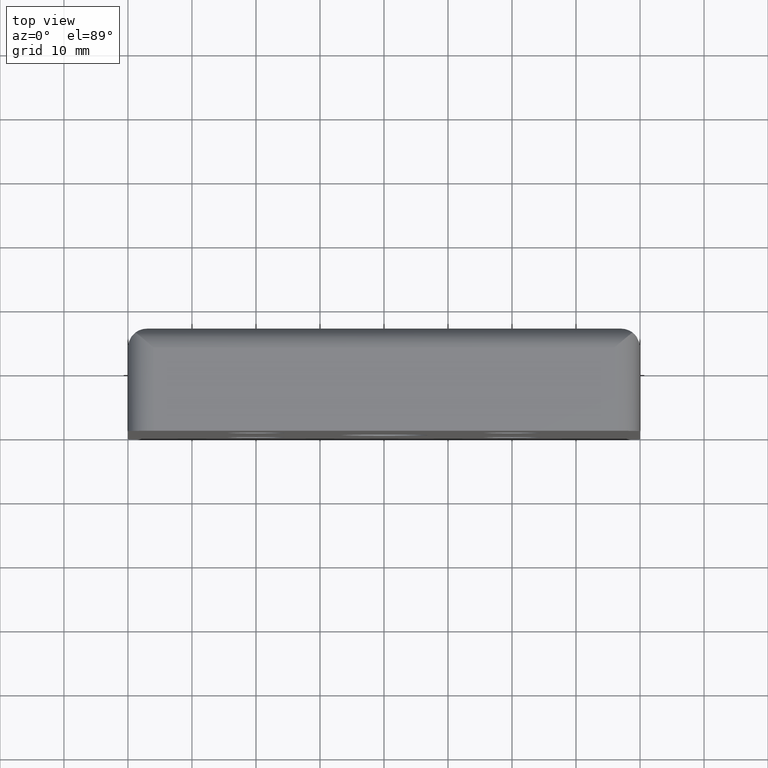
[diagram: clean part render]
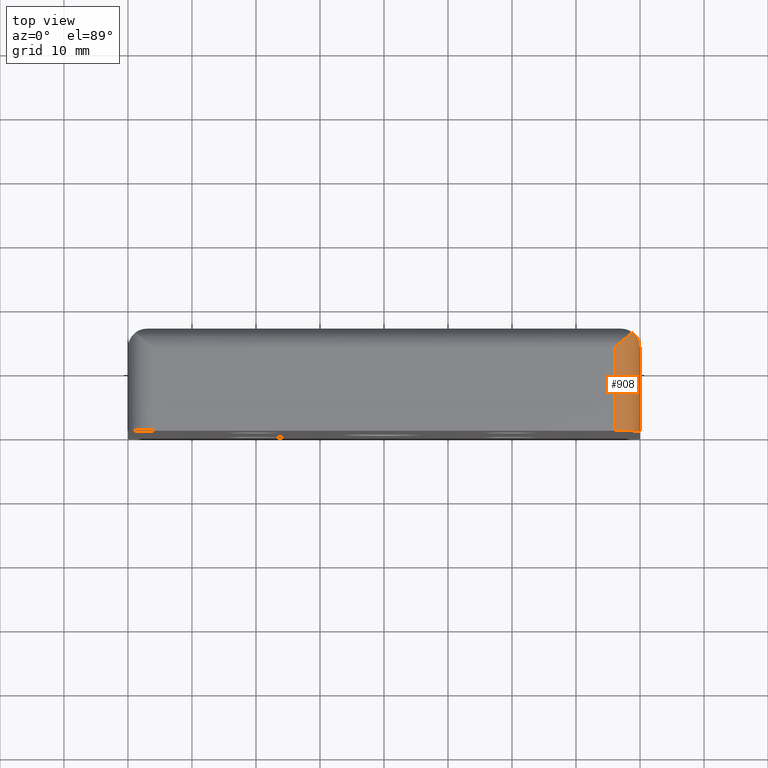
[diagram: same view with one face highlighted and labeled with its STEP entity id]
A machine part, top view. The second image highlights one B-rep face of the part: STEP entity #908.
In plain terms, the highlighted cylindrical surface (edge-blend (fillet) strip) has radius 4 mm, axis along (0, -1, 0).
Its self-contained STEP definition (entity closure, byte-faithful):
#58 = CARTESIAN_POINT ( 'NONE',  ( 38.62143446056313000, 15.21928677565295200, 39.03541978892763400 ) ) ;
#86 = ORIENTED_EDGE ( 'NONE', *, *, #434, .T. ) ;
#99 = ORIENTED_EDGE ( 'NONE', *, *, #1057, .T. ) ;
#129 = B_SPLINE_CURVE_WITH_KNOTS ( 'NONE', 3,
 ( #791, #900, #1260, #194, #393, #239, #252, #920, #1014, #708, #337, #427 ),
 .UNSPECIFIED., .F., .F.,
 ( 4, 2, 2, 2, 2, 4 ),
 ( -1.264911580359389800E-005, 0.0004774583186759194700, 0.0009675657531554328600, 0.001947780622114456200, 0.002927995491073480100, 0.003908210360032503400 ),
 .UNSPECIFIED. ) ;
#131 = EDGE_CURVE ( 'NONE', #663, #637, #302, .T. ) ;
#133 = VERTEX_POINT ( 'NONE', #204 ) ;
#151 = CIRCLE ( 'NONE', #510, 3.999999999999989800 ) ;
#194 = CARTESIAN_POINT ( 'NONE',  ( 39.97089203796559800, 13.43060167904425800, 36.49748854733231700 ) ) ;
#201 = EDGE_LOOP ( 'NONE', ( #99, #705, #331, #86, #1076 ) ) ;
#204 = CARTESIAN_POINT ( 'NONE',  ( 38.82842712474781900, 15.37841423000418600, 38.82842712474780500 ) ) ;
#239 = CARTESIAN_POINT ( 'NONE',  ( 39.88401114786969300, 13.85397326156055600, 36.98826224870940400 ) ) ;
#252 = CARTESIAN_POINT ( 'NONE',  ( 39.81469691724778000, 14.06213723432814400, 37.23077577007112600 ) ) ;
#258 = CARTESIAN_POINT ( 'NONE',  ( 36.00000000000000700, 13.00000000000000200, 39.99999999999999300 ) ) ;
#265 = EDGE_CURVE ( 'NONE', #550, #133, #129, .T. ) ;
#277 = CARTESIAN_POINT ( 'NONE',  ( 38.40341145438293300, 15.04388981782205500, 39.20890182825586800 ) ) ;
#302 = LINE ( 'NONE', #474, #589 ) ;
#331 = ORIENTED_EDGE ( 'NONE', *, *, #265, .T. ) ;
#337 = CARTESIAN_POINT ( 'NONE',  ( 39.03489171009092500, 15.21969274096393800, 38.62196253940136600 ) ) ;
#339 = CARTESIAN_POINT ( 'NONE',  ( 36.00000000000000700, 0.0000000000000000000, 36.00000000000000700 ) ) ;
#345 = DIRECTION ( 'NONE',  ( 0.0000000000000000000, -1.000000000000000000, 0.0000000000000000000 ) ) ;
#359 = CARTESIAN_POINT ( 'NONE',  ( 36.12432058945940100, 13.10766476302380900, 39.99999999999998600 ) ) ;
#382 = CARTESIAN_POINT ( 'NONE',  ( 36.00000000000000700, 0.0000000000000000000, 39.99999999999999300 ) ) ;
#393 = CARTESIAN_POINT ( 'NONE',  ( 39.95352107080188400, 13.53703905114396400, 36.62066283920953700 ) ) ;
#427 = CARTESIAN_POINT ( 'NONE',  ( 38.82842712474781900, 15.37841423000418600, 38.82842712474780500 ) ) ;
#434 = EDGE_CURVE ( 'NONE', #133, #663, #441, .T. ) ;
#441 = B_SPLINE_CURVE_WITH_KNOTS ( 'NONE', 3,
 ( #1053, #58, #277, #836, #833, #1046, #931, #1140, #536, #1221, #359, #258 ),
 .UNSPECIFIED., .F., .F.,
 ( 4, 2, 2, 2, 2, 4 ),
 ( 1.717641861159630300E-014, 0.0009867635841225314700, 0.001973527168227886600, 0.002960290752333241700, 0.003453672544385919200, 0.003947054336438596800 ),
 .UNSPECIFIED. ) ;
#474 = CARTESIAN_POINT ( 'NONE',  ( 36.00000000000000700, 0.0000000000000000000, 39.99999999999999300 ) ) ;
#484 = VECTOR ( 'NONE', #1189, 1000.000000000000000 ) ;
#510 = AXIS2_PLACEMENT_3D ( 'NONE', #1056, #1142, #548 ) ;
#520 = VERTEX_POINT ( 'NONE', #1037 ) ;
#536 = CARTESIAN_POINT ( 'NONE',  ( 36.49763328252981200, 13.43072678963194400, 39.97087372156992300 ) ) ;
#548 = DIRECTION ( 'NONE',  ( 0.0000000000000000000, 0.0000000000000000000, -1.000000000000000000 ) ) ;
#550 = VERTEX_POINT ( 'NONE', #1163 ) ;
#589 = VECTOR ( 'NONE', #1196, 1000.000000000000000 ) ;
#637 = VERTEX_POINT ( 'NONE', #382 ) ;
#663 = VERTEX_POINT ( 'NONE', #889 ) ;
#688 = EDGE_CURVE ( 'NONE', #550, #520, #728, .T. ) ;
#705 = ORIENTED_EDGE ( 'NONE', *, *, #688, .F. ) ;
#708 = CARTESIAN_POINT ( 'NONE',  ( 39.20894987977496300, 15.04378620874601000, 38.40329025163295300 ) ) ;
#728 = LINE ( 'NONE', #882, #484 ) ;
#791 = CARTESIAN_POINT ( 'NONE',  ( 39.99999999999999300, 13.00000000000000200, 36.00000000000000700 ) ) ;
#818 = FACE_OUTER_BOUND ( 'NONE', #201, .T. ) ;
#833 = CARTESIAN_POINT ( 'NONE',  ( 37.70987759618805100, 14.46910533654355300, 39.62529759723052800 ) ) ;
#836 = CARTESIAN_POINT ( 'NONE',  ( 37.94864017879967100, 14.66972653742276100, 39.50374642575779700 ) ) ;
#882 = CARTESIAN_POINT ( 'NONE',  ( 40.00000000000000000, 0.0000000000000000000, 36.00000000000000700 ) ) ;
#889 = CARTESIAN_POINT ( 'NONE',  ( 36.00000000000000700, 13.00000000000000200, 39.99999999999999300 ) ) ;
#891 = CYLINDRICAL_SURFACE ( 'NONE', #1080, 3.999999999999989800 ) ;
#900 = CARTESIAN_POINT ( 'NONE',  ( 40.00000000000000000, 13.10695023945531900, 36.12349552845829900 ) ) ;
#908 = ADVANCED_FACE ( 'NONE', ( #818 ), #891, .T. ) ;
#920 = CARTESIAN_POINT ( 'NONE',  ( 39.62471595794642800, 14.47021099867051900, 37.71118549282723400 ) ) ;
#931 = CARTESIAN_POINT ( 'NONE',  ( 36.98813249623544400, 13.85386132682415700, 39.88403406357649300 ) ) ;
#1014 = CARTESIAN_POINT ( 'NONE',  ( 39.50328647997307700, 14.67035278836604600, 37.94939662555868400 ) ) ;
#1022 = DIRECTION ( 'NONE',  ( 0.0000000000000000000, 0.0000000000000000000, -1.000000000000000000 ) ) ;
#1037 = CARTESIAN_POINT ( 'NONE',  ( 40.00000000000000000, 0.0000000000000000000, 36.00000000000000700 ) ) ;
#1046 = CARTESIAN_POINT ( 'NONE',  ( 37.23035168332963000, 14.06177168102453500, 39.81479996824985800 ) ) ;
#1053 = CARTESIAN_POINT ( 'NONE',  ( 38.82842712474781900, 15.37841423000418600, 38.82842712474780500 ) ) ;
#1056 = CARTESIAN_POINT ( 'NONE',  ( 36.00000000000000700, 0.0000000000000000000, 36.00000000000000700 ) ) ;
#1057 = EDGE_CURVE ( 'NONE', #637, #520, #151, .T. ) ;
#1076 = ORIENTED_EDGE ( 'NONE', *, *, #131, .T. ) ;
#1080 = AXIS2_PLACEMENT_3D ( 'NONE', #339, #345, #1022 ) ;
#1140 = CARTESIAN_POINT ( 'NONE',  ( 36.62076534965340400, 13.53712746569639000, 39.95350249651551900 ) ) ;
#1142 = DIRECTION ( 'NONE',  ( -0.0000000000000000000, 1.000000000000000000, -0.0000000000000000000 ) ) ;
#1163 = CARTESIAN_POINT ( 'NONE',  ( 39.99999999999999300, 13.00000000000000200, 36.00000000000000700 ) ) ;
#1189 = DIRECTION ( 'NONE',  ( -0.0000000000000000000, -1.000000000000000000, -0.0000000000000000000 ) ) ;
#1196 = DIRECTION ( 'NONE',  ( 0.0000000000000000000, -1.000000000000000000, 0.0000000000000000000 ) ) ;
#1221 = CARTESIAN_POINT ( 'NONE',  ( 36.24990877120281100, 13.21642701211935000, 39.99412350868271200 ) ) ;
#1260 = CARTESIAN_POINT ( 'NONE',  ( 39.99413351507015300, 13.21629101039277300, 36.24975166805987200 ) ) ;